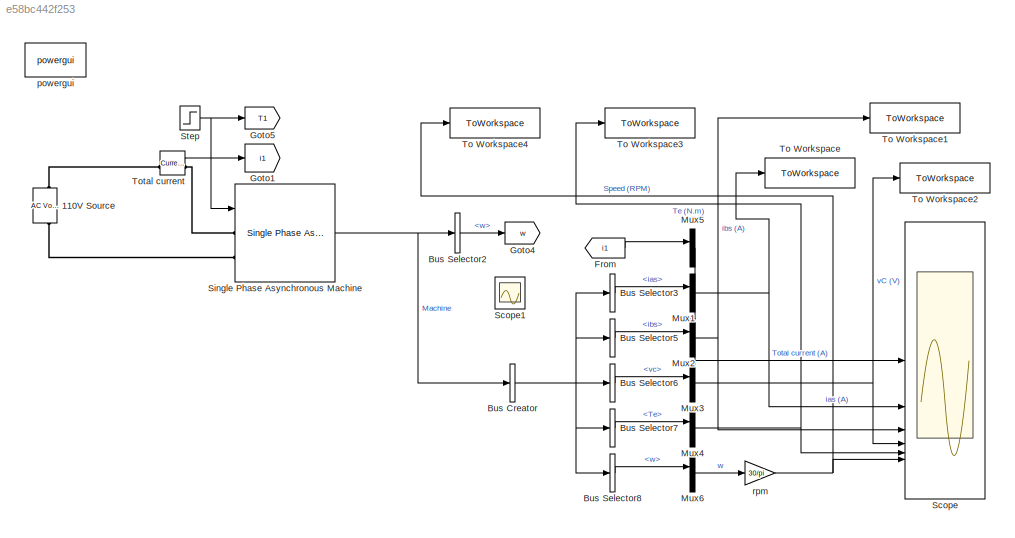
MODEL slx_e58bc442f253
KIND model
CONFIG AbsTol = auto
CONFIG EnableMultiTasking = off
CONFIG FixedStep = auto
CONFIG MaxStep = auto
CONFIG MinStep = auto
CONFIG RelTol = 1e-3
CONFIG SampleTimeConstraint = Unconstrained
CONFIG SolverName = VariableStepAuto
CONFIG StartTime = 0.0
CONFIG StopTime = 3
BLOCK [Reference] 110V Source  REF=spsACVoltageSourceLib/AC Voltage Source
  NameLocation = right
  SourceBlock = spsACVoltageSourceLib/AC Voltage Source
  SourceType = AC Voltage Source
BLOCK [BusCreator] Bus Creator
  DisplayOption = bar
  InheritFromInputs = on
  Inputs = 1
BLOCK [BusSelector] Bus Selector2
  OutputSignals = w
BLOCK [BusSelector] Bus Selector3
  OutputSignals = Machine.ias
BLOCK [BusSelector] Bus Selector5
  OutputSignals = Machine.ibs
BLOCK [BusSelector] Bus Selector6
  OutputSignals = Machine.vc
BLOCK [BusSelector] Bus Selector7
  OutputSignals = Machine.Te
BLOCK [BusSelector] Bus Selector8
  OutputSignals = Machine.w
BLOCK [From] From
  CloseFcn = tagdialog Close
  GotoTag = i1
  TagVisibility = global
BLOCK [Goto] Goto1
  GotoTag = i1
  TagVisibility = global
BLOCK [Goto] Goto4
  GotoTag = w
  TagVisibility = global
BLOCK [Goto] Goto5
  GotoTag = T1
  TagVisibility = global
BLOCK [Mux] Mux1
  DisplayOption = bar
  Inputs = 1
BLOCK [Mux] Mux2
  DisplayOption = bar
  Inputs = 1
BLOCK [Mux] Mux3
  DisplayOption = bar
  Inputs = 1
BLOCK [Mux] Mux4
  DisplayOption = bar
  Inputs = 1
BLOCK [Mux] Mux5
  DisplayOption = bar
  Inputs = 1
BLOCK [Mux] Mux6
  DisplayOption = bar
  Inputs = 1
BLOCK [Scope] Scope
  Floating = off
  NumInputPorts = 6
  ScopeSpecificationString = Simulink.scopes.TimeScopeBlockCfg('CurrentConfiguration', extmgr.ConfigurationSet(extmgr.Configuration('Core','General UI',true),extmgr.Configuration('Core','Source UI',true),extmgr.Configuration('Sources','WiredSimulink',true),extmgr.Configuration('Visuals','Time Domain',true,'SerializedDisplays',{struct('MinYLimReal','-33.89251','MaxYLimReal','33.84868','YLabelReal','','MinYLimMag','0.00000','Ma...<+5439ch>
BLOCK [Scope] Scope1
  Floating = off
  NumInputPorts = 1
  ScopeSpecificationString = Simulink.scopes.TimeScopeBlockCfg('CurrentConfiguration', extmgr.ConfigurationSet(extmgr.Configuration('Core','General UI',true),extmgr.Configuration('Core','Source UI',true),extmgr.Configuration('Sources','WiredSimulink',true,'DataLoggingVariableName','ScopeData1'),extmgr.Configuration('Visuals','Time Domain',true,'SerializedDisplays',{struct('MinYLimReal','-33.89251','MaxYLimReal','33.84868','YL...<+2054ch>
BLOCK [Reference] Single Phase Asynchronous Machine  REF=spsSinglePhaseAsynchronousMachineLib/Single Phase
Asynchronous Machine
  SourceBlock = spsSinglePhaseAsynchronousMachineLib/Single Phase\nAsynchronous Machine
  SourceType = Single Phase Asynchronous Machine
BLOCK [Step] Step
  SampleTime = 0
  Time = 2
BLOCK [ToWorkspace] To Workspace
  FixptAsFi = on
  MaxDataPoints = inf
  SampleTime = -1
  SaveFormat = Timeseries
  VariableName = ias
BLOCK [ToWorkspace] To Workspace1
  FixptAsFi = on
  MaxDataPoints = inf
  SampleTime = -1
  SaveFormat = Timeseries
  VariableName = ibs
BLOCK [ToWorkspace] To Workspace2
  FixptAsFi = on
  MaxDataPoints = inf
  SampleTime = -1
  SaveFormat = Timeseries
  VariableName = Vc
BLOCK [ToWorkspace] To Workspace3
  FixptAsFi = on
  MaxDataPoints = inf
  SampleTime = -1
  SaveFormat = Timeseries
  VariableName = Te
BLOCK [ToWorkspace] To Workspace4
  FixptAsFi = on
  MaxDataPoints = inf
  SampleTime = -1
  SaveFormat = Timeseries
  VariableName = speed
BLOCK [Reference] Total current  REF=spsCurrentMeasurementLib/Current Measurement
  SourceBlock = spsCurrentMeasurementLib/Current Measurement
  SourceType = Current Measurement
BLOCK [Reference] powergui  REF=spspowerguiLib/powergui
  SourceBlock = spspowerguiLib/powergui
  SourceType = PSB option menu block
BLOCK [Gain] rpm
  Gain = 30/pi
  OutDataTypeStr = Inherit: Same as input
  ParamDataTypeStr = Inherit: Same as input
  SaturateOnIntegerOverflow = on
NET Bus Creator:1 -> Bus Selector3:1, Bus Selector5:1, Bus Selector6:1, Bus Selector7:1, Bus Selector8:1
LINE Bus Selector2:1 -> Goto4:1
LINE Bus Selector3:1 -> Mux1:1
LINE Bus Selector5:1 -> Mux2:1
LINE Bus Selector6:1 -> Mux3:1
LINE Bus Selector7:1 -> Mux4:1
LINE Bus Selector8:1 -> Mux6:1
LINE From:1 -> Mux5:1
NET Mux1:1 -> Scope:2, To Workspace:1
NET Mux2:1 -> Scope:3, To Workspace1:1
NET Mux3:1 -> Scope:4, To Workspace2:1
NET Mux4:1 -> Scope:5, To Workspace3:1
LINE Mux5:1 -> Scope:1
LINE Mux6:1 -> rpm:1
NET Single Phase Asynchronous Machine:1 -> Bus Creator:1, Bus Selector2:1
NET Step:1 -> Goto5:1, Single Phase Asynchronous Machine:1
LINE Total current:1 -> Goto1:1
NET rpm:1 -> Scope:6, To Workspace4:1
PLINE 110V Source:LConn1 -- Single Phase Asynchronous Machine:LConn2
PLINE 110V Source:RConn1 -- Total current:LConn1
PLINE Single Phase Asynchronous Machine:LConn1 -- Total current:RConn1
note: NET lines group one-source signal fan-out (src -> all destinations, sorted); 1:1 wires keep LINE
